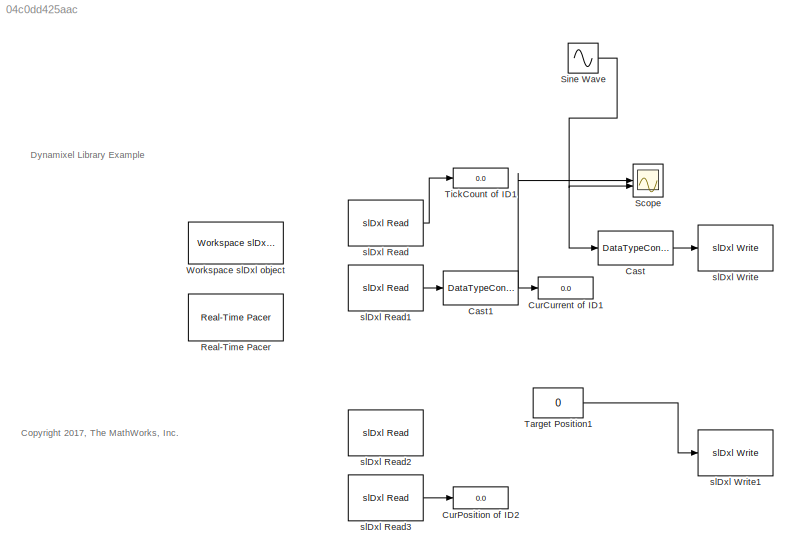
MODEL slx_04c0dd425aac
KIND model
CONFIG AbsTol = auto
CONFIG EnableMultiTasking = off
CONFIG FixedStep = auto
CONFIG MaxStep = auto
CONFIG MinStep = auto
CONFIG RelTol = 1e-3
CONFIG SampleTimeConstraint = Unconstrained
CONFIG SolverName = VariableStepAuto
CONFIG StartFcn = myDxl.doEnableTorque(11);\nmyDxl.doEnableTorque(12);\nmyDxl.doEnableTorque(13);\nmyDxl.doEnableTorque(14);\nmyDxl.doEnableTorque(15);
CONFIG StartTime = 0.0
CONFIG StopFcn = myDxl.doDisableTorque(11);\nmyDxl.doDisableTorque(12);\nmyDxl.doDisableTorque(13);\nmyDxl.doDisableTorque(14);\nmyDxl.doDisableTorque(15);
CONFIG StopTime = inf
BLOCK [DataTypeConversion] Cast
  OutDataTypeStr = uint16
  RndMeth = Floor
  SaturateOnIntegerOverflow = off
BLOCK [DataTypeConversion] Cast1
  OutDataTypeStr = int16
  RndMeth = Floor
  SaturateOnIntegerOverflow = off
BLOCK [Display] CurCurrent of ID1
  Decimation = 1
  Format = long
BLOCK [Display] CurPosition of ID2
  Decimation = 1
  Format = long
BLOCK [Reference] Real-Time Pacer  REF=slDxl_lib/Real-Time Pacer
  SourceBlock = slDxl_lib/Real-Time Pacer
  SourceType = RealTime_Pacer
BLOCK [Scope] Scope
  Floating = off
  NumInputPorts = 2
  ScopeSpecificationString = Simulink.scopes.TimeScopeBlockCfg('CurrentConfiguration', extmgr.ConfigurationSet(extmgr.Configuration('Core','General UI',true),extmgr.Configuration('Core','Source UI',true),extmgr.Configuration('Sources','WiredSimulink',true),extmgr.Configuration('Visuals','Time Domain',true,'SerializedDisplays',{struct('MinYLimReal','-55.5','MaxYLimReal','29.5','YLabelReal','','MinYLimMag','0.00000','MaxYLimMag...<+1333ch>
BLOCK [Sin] Sine Wave
  Amplitude = 20
  Frequency = 11
  SampleTime = 0
BLOCK [Constant] Target Position1
  OutDataTypeStr = int16
  Value = 0
BLOCK [Display] TickCount of ID1
  Decimation = 1
  Format = long
BLOCK [Reference] Workspace slDxl object  REF=slDxl_lib/Workspace slDxl object
  SourceBlock = slDxl_lib/Workspace slDxl object
  SourceType = slDxl Setup
BLOCK [Reference] slDxl Read  REF=slDxl_lib/slDxl Read
  SourceBlock = slDxl_lib/slDxl Read
BLOCK [Reference] slDxl Read1  REF=slDxl_lib/slDxl Read
  SourceBlock = slDxl_lib/slDxl Read
BLOCK [Reference] slDxl Read2  REF=slDxl_lib/slDxl Read
  Commented = on
  SourceBlock = slDxl_lib/slDxl Read
BLOCK [Reference] slDxl Read3  REF=slDxl_lib/slDxl Read
  SourceBlock = slDxl_lib/slDxl Read
BLOCK [Reference] slDxl Write  REF=slDxl_lib/slDxl Write
  SourceBlock = slDxl_lib/slDxl Write
BLOCK [Reference] slDxl Write1  REF=slDxl_lib/slDxl Write
  SourceBlock = slDxl_lib/slDxl Write
ANNOTATION (root): Dynamixel Library Example
ANNOTATION (root): <copyright redacted>
NET Cast1:1 -> CurCurrent of ID1:1, Scope:1
LINE Cast:1 -> slDxl Write:1
NET Sine Wave:1 -> Cast:1, Scope:2
LINE Target Position1:1 -> slDxl Write1:1
LINE slDxl Read1:1 -> Cast1:1
LINE slDxl Read3:1 -> CurPosition of ID2:1
LINE slDxl Read:1 -> TickCount of ID1:1
note: NET lines group one-source signal fan-out (src -> all destinations, sorted); 1:1 wires keep LINE
